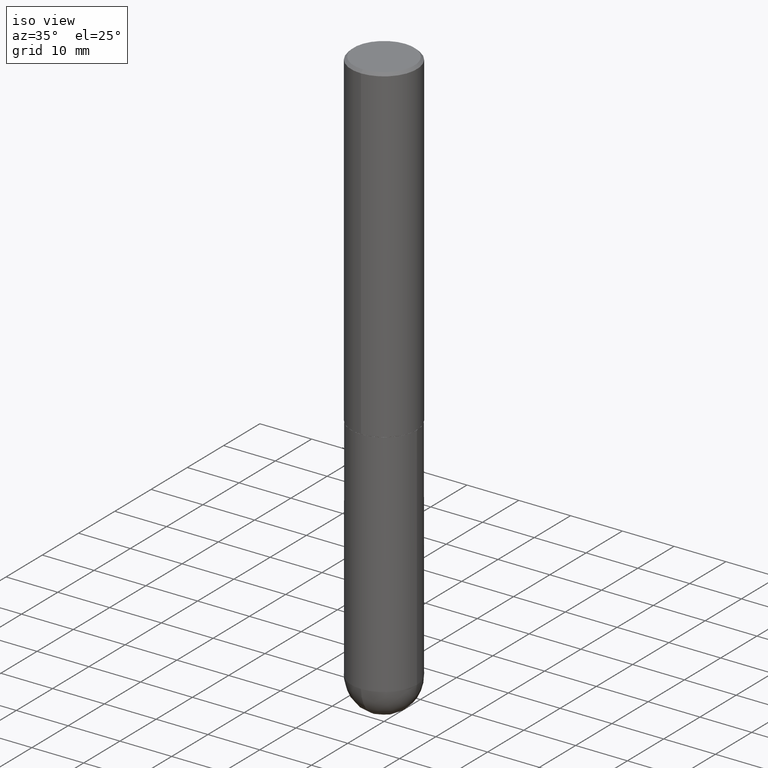
[diagram: clean part render]
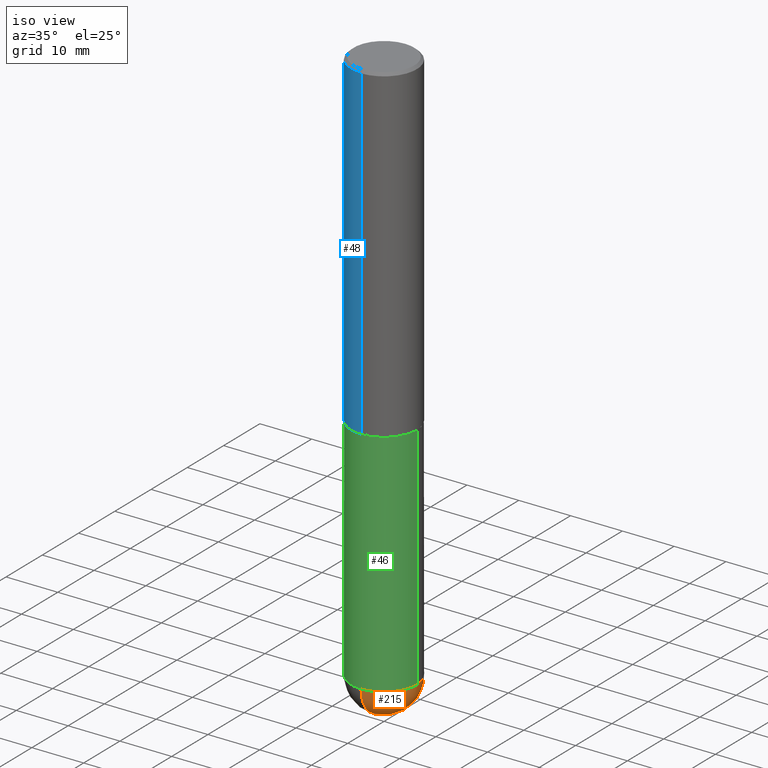
[diagram: same view with three faces highlighted in distinct colors, each labeled with its STEP entity id]
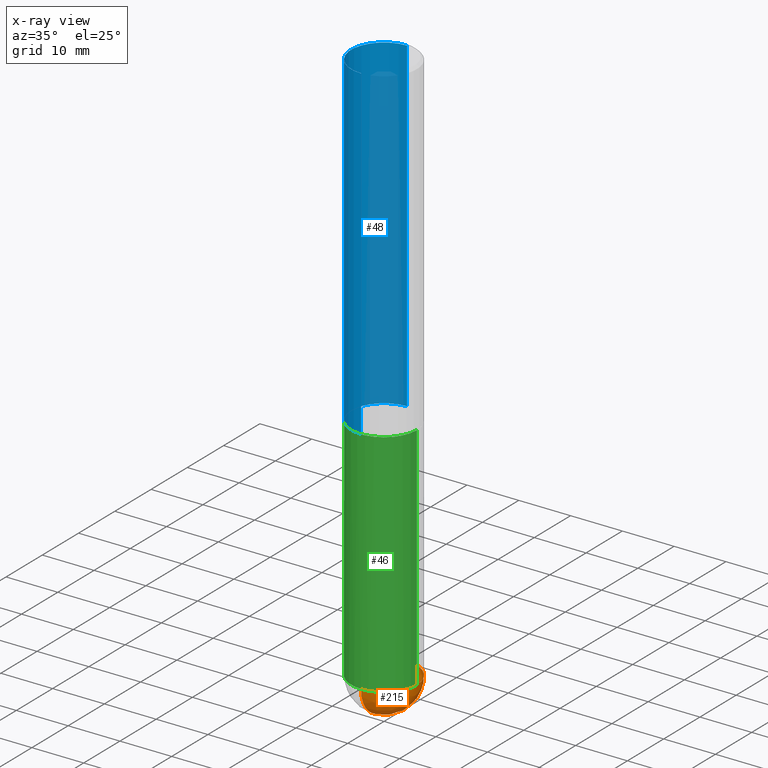
[diagram: x-ray of the same camera — body ghosted, the three highlighted faces saturated]
A machine part, iso view with three faces highlighted in distinct colors.
The next image is the same camera in x-ray (body ghosted, the three faces saturated) — at least one of them is partly hidden behind the body in this view.
Their STEP definitions:

[orange] entity #215 — the highlighted spherical surface has radius 6.35 mm.
#4 = CARTESIAN_POINT ( 'NONE',  ( 1.039324242628683054E-28, -1.483879569008337040E-14, -4.250000000000000000 ) ) ;
#6 = DIRECTION ( 'NONE',  ( 6.982962677686266711E-15, 1.000000000000000000, 0.000000000000000000 ) ) ;
#14 = ORIENTED_EDGE ( 'NONE', *, *, #332, .T. ) ;
#17 = AXIS2_PLACEMENT_3D ( 'NONE', #225, #262, #124 ) ;
#28 = DIRECTION ( 'NONE',  ( -1.000000000000000000, 6.982962677686265922E-15, -4.883557194083113462E-29 ) ) ;
#32 = FACE_OUTER_BOUND ( 'NONE', #82, .T. ) ;
#33 = ORIENTED_EDGE ( 'NONE', *, *, #194, .F. ) ;
#34 = CARTESIAN_POINT ( 'NONE',  ( 1.745740669421669032E-15, 0.2499999999999849842, -4.250000000000001776 ) ) ;
#39 = AXIS2_PLACEMENT_3D ( 'NONE', #333, #269, #6 ) ;
#45 = CIRCLE ( 'NONE', #101, 0.2500000000000000000 ) ;
#52 = VERTEX_POINT ( 'NONE', #34 ) ;
#69 = DIRECTION ( 'NONE',  ( -2.445468806185136597E-29, 3.491481338843145583E-15, 1.000000000000000000 ) ) ;
#82 = EDGE_LOOP ( 'NONE', ( #400, #14, #214, #33 ) ) ;
#92 = CARTESIAN_POINT ( 'NONE',  ( 1.039324242628683054E-28, -1.483879569008337040E-14, -4.250000000000000000 ) ) ;
#101 = AXIS2_PLACEMENT_3D ( 'NONE', #4, #69, #203 ) ;
#106 = EDGE_CURVE ( 'NONE', #358, #278, #395, .T. ) ;
#124 = DIRECTION ( 'NONE',  ( -7.105427357601001859E-15, -1.000000000000000000, 0.000000000000000000 ) ) ;
#139 = CIRCLE ( 'NONE', #39, 0.2500000000000001110 ) ;
#146 = AXIS2_PLACEMENT_3D ( 'NONE', #322, #28, #294 ) ;
#192 = DIRECTION ( 'NONE',  ( 1.000000000000000000, -6.982962677686270655E-15, 0.000000000000000000 ) ) ;
#194 = EDGE_CURVE ( 'NONE', #278, #371, #216, .T. ) ;
#201 = CARTESIAN_POINT ( 'NONE',  ( 1.068417942853397052E-28, -1.617054030794486372E-14, -4.500000000000000888 ) ) ;
#203 = DIRECTION ( 'NONE',  ( 1.000000000000000000, -6.982962677686270655E-15, 0.000000000000000000 ) ) ;
#214 = ORIENTED_EDGE ( 'NONE', *, *, #297, .F. ) ;
#215 = ADVANCED_FACE ( 'NONE', ( #32 ), #407, .T. ) ;
#216 = CIRCLE ( 'NONE', #239, 0.2500000000000000000 ) ;
#225 = CARTESIAN_POINT ( 'NONE',  ( 1.006212264837294429E-28, -1.531297805822341912E-14, -4.250000000000000000 ) ) ;
#239 = AXIS2_PLACEMENT_3D ( 'NONE', #92, #288, #192 ) ;
#262 = DIRECTION ( 'NONE',  ( -1.000000000000000000, 7.105427357601001070E-15, -4.926315508542082329E-29 ) ) ;
#268 = CARTESIAN_POINT ( 'NONE',  ( -1.776356839400148307E-15, -0.2500000000000151545, -4.249999999999999112 ) ) ;
#269 = DIRECTION ( 'NONE',  ( 1.000000000000000000, -6.982962677686265922E-15, 4.883557194083112340E-29 ) ) ;
#278 = VERTEX_POINT ( 'NONE', #268 ) ;
#288 = DIRECTION ( 'NONE',  ( -2.445468806185136597E-29, 3.491481338843145583E-15, 1.000000000000000000 ) ) ;
#294 = DIRECTION ( 'NONE',  ( 6.982962677686265922E-15, 1.000000000000000000, -4.370956789862818783E-15 ) ) ;
#297 = EDGE_CURVE ( 'NONE', #371, #52, #45, .T. ) ;
#322 = CARTESIAN_POINT ( 'NONE',  ( 1.006212264837294429E-28, -1.531297805822341912E-14, -4.250000000000000000 ) ) ;
#332 = EDGE_CURVE ( 'NONE', #358, #52, #139, .T. ) ;
#333 = CARTESIAN_POINT ( 'NONE',  ( 1.006212264837294429E-28, -1.531297805822341912E-14, -4.250000000000000000 ) ) ;
#358 = VERTEX_POINT ( 'NONE', #201 ) ;
#365 = CARTESIAN_POINT ( 'NONE',  ( 0.2500000000000000000, -1.352949018801718751E-14, -4.250000000000000000 ) ) ;
#371 = VERTEX_POINT ( 'NONE', #365 ) ;
#395 = CIRCLE ( 'NONE', #17, 0.2500000000000001110 ) ;
#400 = ORIENTED_EDGE ( 'NONE', *, *, #106, .F. ) ;
#407 = SPHERICAL_SURFACE ( 'NONE', #146, 0.2500000000000001110 ) ;

[blue] entity #48 — the highlighted cylindrical surface (partial cylindrical patch) has radius 6.35 mm, axis along (-0, 0, 1).
#3 = DIRECTION ( 'NONE',  ( -2.445898209547976618E-29, 3.490866408787436892E-15, 1.000000000000000000 ) ) ;
#5 = AXIS2_PLACEMENT_3D ( 'NONE', #21, #3, #251 ) ;
#21 = CARTESIAN_POINT ( 'NONE',  ( 4.891796419095966548E-31, -6.981732817574893210E-17, -0.02000000000000005593 ) ) ;
#23 = VECTOR ( 'NONE', #367, 39.37007874015748143 ) ;
#36 = LINE ( 'NONE', #206, #23 ) ;
#47 = ORIENTED_EDGE ( 'NONE', *, *, #241, .F. ) ;
#48 = ADVANCED_FACE ( 'NONE', ( #129 ), #157, .T. ) ;
#80 = VERTEX_POINT ( 'NONE', #352 ) ;
#88 = EDGE_CURVE ( 'NONE', #80, #370, #107, .T. ) ;
#107 = CIRCLE ( 'NONE', #5, 0.2500000000000000000 ) ;
#108 = DIRECTION ( 'NONE',  ( -2.445898209547976618E-29, 3.490866408787436498E-15, 1.000000000000000000 ) ) ;
#109 = EDGE_CURVE ( 'NONE', #191, #394, #304, .T. ) ;
#120 = ORIENTED_EDGE ( 'NONE', *, *, #88, .F. ) ;
#129 = FACE_OUTER_BOUND ( 'NONE', #213, .T. ) ;
#142 = LINE ( 'NONE', #143, #360 ) ;
#143 = CARTESIAN_POINT ( 'NONE',  ( -1.745740669421567467E-15, -0.2500000000000001110, 8.727166021968597161E-16 ) ) ;
#144 = ORIENTED_EDGE ( 'NONE', *, *, #340, .T. ) ;
#147 = AXIS2_PLACEMENT_3D ( 'NONE', #187, #255, #327 ) ;
#157 = CYLINDRICAL_SURFACE ( 'NONE', #186, 0.2500000000000001110 ) ;
#186 = AXIS2_PLACEMENT_3D ( 'NONE', #384, #291, #195 ) ;
#187 = CARTESIAN_POINT ( 'NONE',  ( 6.112299625660394820E-29, -8.723675155559807127E-15, -2.499000000000000110 ) ) ;
#191 = VERTEX_POINT ( 'NONE', #379 ) ;
#195 = DIRECTION ( 'NONE',  ( -6.982962677686266711E-15, -1.000000000000000000, 3.490866408787437287E-15 ) ) ;
#202 = CARTESIAN_POINT ( 'NONE',  ( -1.745740669421507316E-15, -0.2500000000000089928, -2.498999999999999222 ) ) ;
#206 = CARTESIAN_POINT ( 'NONE',  ( 1.776356839400251254E-15, 0.2500000000000001110, -8.727166021968597161E-16 ) ) ;
#213 = EDGE_LOOP ( 'NONE', ( #47, #246, #144, #120 ) ) ;
#241 = EDGE_CURVE ( 'NONE', #191, #80, #36, .T. ) ;
#246 = ORIENTED_EDGE ( 'NONE', *, *, #109, .T. ) ;
#251 = DIRECTION ( 'NONE',  ( -6.982962677686265922E-15, -1.000000000000000000, 3.483106191921935554E-15 ) ) ;
#255 = DIRECTION ( 'NONE',  ( -2.445898209547976618E-29, 3.490866408787436892E-15, 1.000000000000000000 ) ) ;
#264 = CARTESIAN_POINT ( 'NONE',  ( -1.715124499442882299E-15, -0.2500000000000000555, -0.01999999999999918510 ) ) ;
#291 = DIRECTION ( 'NONE',  ( -2.445898209547976618E-29, 3.490866408787436892E-15, 1.000000000000000000 ) ) ;
#304 = CIRCLE ( 'NONE', #147, 0.2500000000000002776 ) ;
#327 = DIRECTION ( 'NONE',  ( -6.982962677686265922E-15, -1.000000000000000000, 4.370956789862816416E-15 ) ) ;
#340 = EDGE_CURVE ( 'NONE', #394, #370, #142, .T. ) ;
#352 = CARTESIAN_POINT ( 'NONE',  ( 1.745740669421566875E-15, 0.2499999999999999167, -0.02000000000000092676 ) ) ;
#360 = VECTOR ( 'NONE', #108, 39.37007874015748143 ) ;
#367 = DIRECTION ( 'NONE',  ( -2.445898209547976618E-29, 3.490866408787436498E-15, 1.000000000000000000 ) ) ;
#370 = VERTEX_POINT ( 'NONE', #264 ) ;
#379 = CARTESIAN_POINT ( 'NONE',  ( 1.776356839400282414E-15, 0.2499999999999915623, -2.499000000000001442 ) ) ;
#384 = CARTESIAN_POINT ( 'NONE',  ( 0.000000000000000000, 0.000000000000000000, 0.000000000000000000 ) ) ;
#394 = VERTEX_POINT ( 'NONE', #202 ) ;

[green] entity #46 — the highlighted cylindrical surface (partial cylindrical patch) has radius 6.35 mm, axis along (-0, 0, 1).
#15 = CARTESIAN_POINT ( 'NONE',  ( 1.039324242628683054E-28, -1.483879569008337040E-14, -4.250000000000000000 ) ) ;
#20 = EDGE_CURVE ( 'NONE', #41, #278, #381, .T. ) ;
#25 = CARTESIAN_POINT ( 'NONE',  ( 6.113672015462842613E-29, -8.728703347107864943E-15, -2.500000000000000000 ) ) ;
#27 = EDGE_CURVE ( 'NONE', #371, #387, #277, .T. ) ;
#35 = ORIENTED_EDGE ( 'NONE', *, *, #229, .F. ) ;
#41 = VERTEX_POINT ( 'NONE', #207 ) ;
#46 = ADVANCED_FACE ( 'NONE', ( #176 ), #64, .T. ) ;
#53 = DIRECTION ( 'NONE',  ( -2.445468806185136597E-29, 3.491481338843145583E-15, 1.000000000000000000 ) ) ;
#55 = DIRECTION ( 'NONE',  ( 1.000000000000000000, -6.982962677686266711E-15, 4.876176775795935793E-29 ) ) ;
#62 = LINE ( 'NONE', #86, #208 ) ;
#64 = CYLINDRICAL_SURFACE ( 'NONE', #250, 0.2500000000000000000 ) ;
#74 = EDGE_LOOP ( 'NONE', ( #372, #341, #300, #401, #35 ) ) ;
#78 = DIRECTION ( 'NONE',  ( -2.445468806185136877E-29, 3.491481338843145188E-15, 1.000000000000000000 ) ) ;
#86 = CARTESIAN_POINT ( 'NONE',  ( -0.2500000000000000000, 1.776356839400250465E-15, -1.229733772563726445E-29 ) ) ;
#92 = CARTESIAN_POINT ( 'NONE',  ( 1.039324242628683054E-28, -1.483879569008337040E-14, -4.250000000000000000 ) ) ;
#114 = CARTESIAN_POINT ( 'NONE',  ( 0.2500000000000000000, -1.745740669421566678E-15, 1.219044193948983948E-29 ) ) ;
#119 = VERTEX_POINT ( 'NONE', #375 ) ;
#149 = DIRECTION ( 'NONE',  ( -2.445468806185136597E-29, 3.491481338843145583E-15, 1.000000000000000000 ) ) ;
#165 = EDGE_CURVE ( 'NONE', #41, #119, #62, .T. ) ;
#167 = CIRCLE ( 'NONE', #179, 0.2500000000000000000 ) ;
#176 = FACE_OUTER_BOUND ( 'NONE', #74, .T. ) ;
#179 = AXIS2_PLACEMENT_3D ( 'NONE', #25, #323, #410 ) ;
#192 = DIRECTION ( 'NONE',  ( 1.000000000000000000, -6.982962677686270655E-15, 0.000000000000000000 ) ) ;
#194 = EDGE_CURVE ( 'NONE', #278, #371, #216, .T. ) ;
#207 = CARTESIAN_POINT ( 'NONE',  ( -0.2500000000000000000, -1.000739267919536879E-14, -4.250000000000000000 ) ) ;
#208 = VECTOR ( 'NONE', #356, 39.37007874015748143 ) ;
#216 = CIRCLE ( 'NONE', #239, 0.2500000000000000000 ) ;
#229 = EDGE_CURVE ( 'NONE', #119, #387, #167, .T. ) ;
#239 = AXIS2_PLACEMENT_3D ( 'NONE', #92, #288, #192 ) ;
#244 = VECTOR ( 'NONE', #78, 39.37007874015748143 ) ;
#250 = AXIS2_PLACEMENT_3D ( 'NONE', #318, #53, #55 ) ;
#268 = CARTESIAN_POINT ( 'NONE',  ( -1.776356839400148307E-15, -0.2500000000000151545, -4.249999999999999112 ) ) ;
#273 = DIRECTION ( 'NONE',  ( 1.000000000000000000, -6.982962677686270655E-15, 0.000000000000000000 ) ) ;
#277 = LINE ( 'NONE', #114, #244 ) ;
#278 = VERTEX_POINT ( 'NONE', #268 ) ;
#288 = DIRECTION ( 'NONE',  ( -2.445468806185136597E-29, 3.491481338843145583E-15, 1.000000000000000000 ) ) ;
#296 = AXIS2_PLACEMENT_3D ( 'NONE', #15, #149, #273 ) ;
#300 = ORIENTED_EDGE ( 'NONE', *, *, #194, .T. ) ;
#318 = CARTESIAN_POINT ( 'NONE',  ( 0.000000000000000000, 0.000000000000000000, 0.000000000000000000 ) ) ;
#323 = DIRECTION ( 'NONE',  ( -2.445468806185136597E-29, 3.491481338843145583E-15, 1.000000000000000000 ) ) ;
#341 = ORIENTED_EDGE ( 'NONE', *, *, #20, .T. ) ;
#356 = DIRECTION ( 'NONE',  ( -2.445468806185136877E-29, 3.491481338843145188E-15, 1.000000000000000000 ) ) ;
#365 = CARTESIAN_POINT ( 'NONE',  ( 0.2500000000000000000, -1.352949018801718751E-14, -4.250000000000000000 ) ) ;
#371 = VERTEX_POINT ( 'NONE', #365 ) ;
#372 = ORIENTED_EDGE ( 'NONE', *, *, #165, .F. ) ;
#375 = CARTESIAN_POINT ( 'NONE',  ( -0.2500000000000000000, -1.000739267919536563E-14, -2.500000000000000000 ) ) ;
#381 = CIRCLE ( 'NONE', #296, 0.2500000000000000000 ) ;
#387 = VERTEX_POINT ( 'NONE', #390 ) ;
#390 = CARTESIAN_POINT ( 'NONE',  ( 0.2500000000000000000, -1.047444401652943162E-14, -2.500000000000000000 ) ) ;
#401 = ORIENTED_EDGE ( 'NONE', *, *, #27, .T. ) ;
#410 = DIRECTION ( 'NONE',  ( 1.000000000000000000, -6.982962677686266711E-15, 0.000000000000000000 ) ) ;